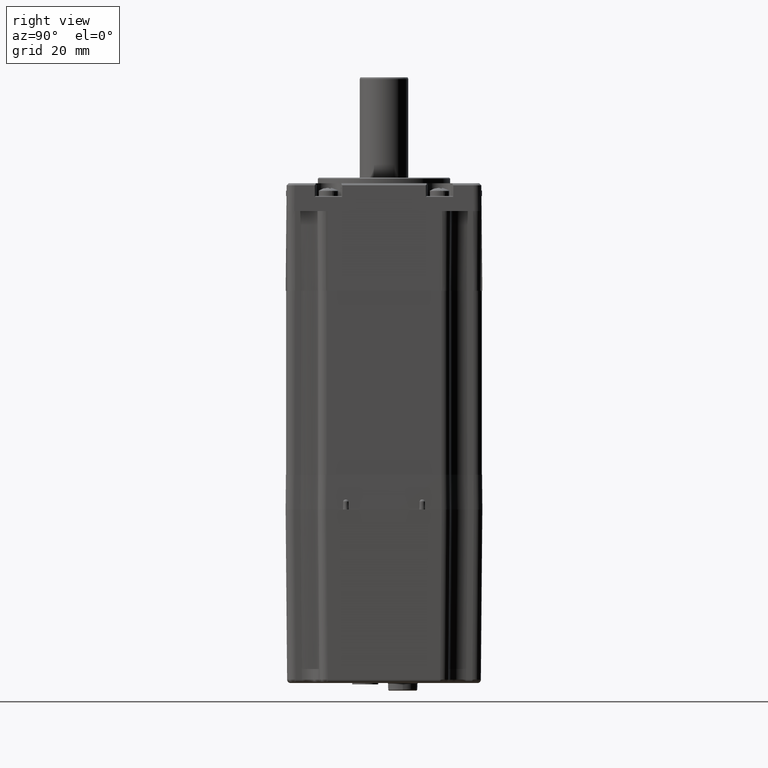
[diagram: clean part render]
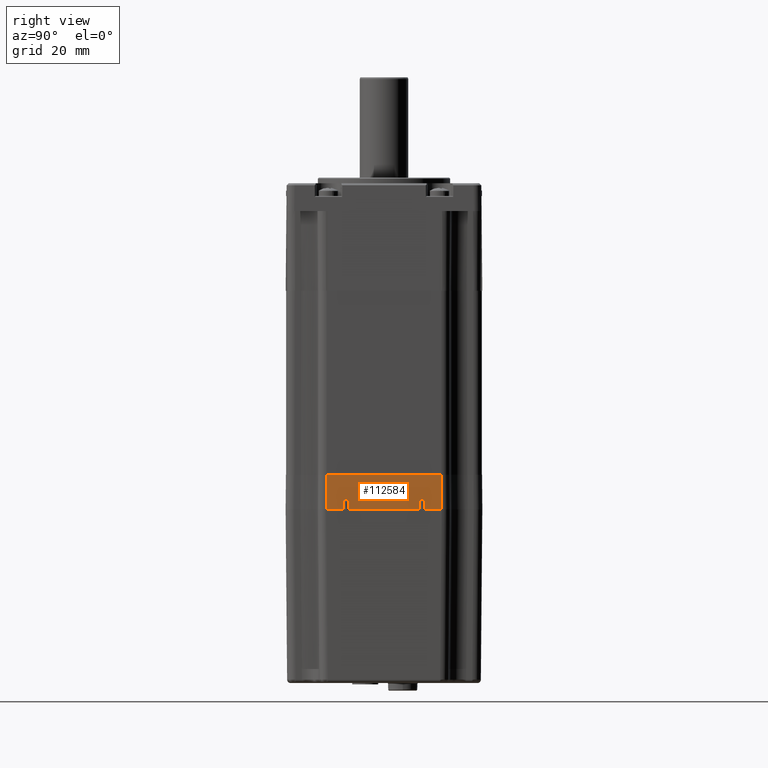
[diagram: same view with one face highlighted and labeled with its STEP entity id]
A machine part, right view. The second image highlights one B-rep face of the part: STEP entity #112584.
In plain terms, the highlighted planar face has unit normal (1, 0, 0.0087).
Its self-contained STEP definition (entity closure, byte-faithful):
#245 = CARTESIAN_POINT ( 'NONE',  ( 28.33726867790758064, 11.79999999999999716, -53.00000000000002132 ) ) ;
#718 = CARTESIAN_POINT ( 'NONE',  ( 28.33726867790759485, 7.806255641895631925E-15, -53.00000000000002132 ) ) ;
#973 = CARTESIAN_POINT ( 'NONE',  ( 28.31221389217270357, -11.18915255202020198, -50.12900592336112027 ) ) ;
#1057 = VECTOR ( 'NONE', #38924, 1000.000000000000000 ) ;
#1268 = CARTESIAN_POINT ( 'NONE',  ( 28.31221117411985233, -10.81229271371833711, -50.12869446535329132 ) ) ;
#2504 = CARTESIAN_POINT ( 'NONE',  ( 28.31416921438855994, -10.40136677369711116, -50.35306365664438744 ) ) ;
#2583 = LINE ( 'NONE', #97276, #59135 ) ;
#3123 = CARTESIAN_POINT ( 'NONE',  ( 28.31794772489302048, 10.23383058632317422, -50.78603807485019672 ) ) ;
#4241 = EDGE_CURVE ( 'NONE', #109124, #76185, #24948, .T. ) ;
#4432 = CARTESIAN_POINT ( 'NONE',  ( 28.32421031922440591, 11.77713893506511056, -51.50366030559093389 ) ) ;
#4476 = CARTESIAN_POINT ( 'NONE',  ( 28.31939389639366311, -11.76870275109384600, -50.95175291496205716 ) ) ;
#6049 = CARTESIAN_POINT ( 'NONE',  ( 28.31794772489302048, 10.23383058632317422, -50.78603807485019672 ) ) ;
#6090 = B_SPLINE_CURVE_WITH_KNOTS ( 'NONE', 3,
 ( #42061, #70867, #4432, #27023, #104090, #122168, #112226 ),
 .UNSPECIFIED., .F., .F.,
 ( 4, 3, 4 ),
 ( 0.0007861598841448719319, 0.001862759966439825159, 0.003000464563675161664 ),
 .UNSPECIFIED. ) ;
#8393 = CARTESIAN_POINT ( 'NONE',  ( 28.31312127675865042, 10.54637998764158091, -50.23298189821297655 ) ) ;
#8672 = LINE ( 'NONE', #122066, #32330 ) ;
#8817 = EDGE_CURVE ( 'NONE', #61163, #97099, #69186, .T. ) ;
#9195 = B_SPLINE_CURVE_WITH_KNOTS ( 'NONE', 3,
 ( #10357, #48001, #48631, #78041, #57404, #87444, #58632, #973, #39199, #88059 ),
 .UNSPECIFIED., .F., .F.,
 ( 4, 2, 2, 2, 4 ),
 ( -0.001122844141391254186, -0.0008421331060434347846, -0.0005614220706956153835, -0.0002807110353477959824, 2.341876692568689577E-17 ),
 .UNSPECIFIED. ) ;
#9450 = CARTESIAN_POINT ( 'NONE',  ( 28.32583421352255115, 10.22001631802882393, -51.68974016116764147 ) ) ;
#9884 = VECTOR ( 'NONE', #45144, 1000.000000000000000 ) ;
#10357 = CARTESIAN_POINT ( 'NONE',  ( 28.31794772489302048, -11.76616941367681868, -50.78603807485019672 ) ) ;
#10673 = CARTESIAN_POINT ( 'NONE',  ( 28.33726867790758064, 10.19999999999999396, -53.00000000000002132 ) ) ;
#10911 = VERTEX_POINT ( 'NONE', #91590 ) ;
#11887 = CARTESIAN_POINT ( 'NONE',  ( 28.31209217606547668, -10.90496481609995172, -50.11505863893471968 ) ) ;
#12535 = CARTESIAN_POINT ( 'NONE',  ( 28.31867081063867886, 10.23256388271578921, -50.86889549437263014 ) ) ;
#14000 = VERTEX_POINT ( 'NONE', #6049 ) ;
#14802 = DIRECTION ( 'NONE',  ( 0.9999619230641713097, 2.738932773193157493E-16, 0.008726535498373953759 ) ) ;
#15000 = CARTESIAN_POINT ( 'NONE',  ( 28.24874357347100329, 16.49883876581058573, -42.85602778005795699 ) ) ;
#15020 = B_SPLINE_CURVE_WITH_KNOTS ( 'NONE', 3,
 ( #50771, #11887, #1268, #97195, #88368, #2504, #78929, #108450, #117176, #40123 ),
 .UNSPECIFIED., .F., .F.,
 ( 4, 2, 2, 2, 4 ),
 ( 2.331034670843834533E-17, 0.0002809186991740778017, 0.0005618373983481322930, 0.0008427560975221867843, 0.001123674796696241384 ),
 .UNSPECIFIED. ) ;
#15145 = CARTESIAN_POINT ( 'NONE',  ( 28.33726867790759485, -10.20000000000000817, -53.00000000000002132 ) ) ;
#15686 = CARTESIAN_POINT ( 'NONE',  ( 28.33726867790759485, -11.79999999999999716, -53.00000000000002132 ) ) ;
#17378 = VERTEX_POINT ( 'NONE', #30276 ) ;
#18157 = EDGE_CURVE ( 'NONE', #105104, #20056, #15020, .T. ) ;
#18615 = VERTEX_POINT ( 'NONE', #45239 ) ;
#19667 = CARTESIAN_POINT ( 'NONE',  ( 28.31209217606547313, 10.99999999999999645, -50.11505863893472679 ) ) ;
#19737 = CARTESIAN_POINT ( 'NONE',  ( 28.24874357347101750, -16.49883876581059283, -42.85602778005795699 ) ) ;
#20056 = VERTEX_POINT ( 'NONE', #55897 ) ;
#20847 = CARTESIAN_POINT ( 'NONE',  ( 28.31867081063868241, -11.76743611728419303, -50.86889549437263014 ) ) ;
#22566 = EDGE_CURVE ( 'NONE', #40950, #10911, #24436, .T. ) ;
#22971 = CARTESIAN_POINT ( 'NONE',  ( 28.33726867790759485, -10.20000000000000817, -53.00000000000002132 ) ) ;
#23084 = B_SPLINE_CURVE_WITH_KNOTS ( 'NONE', 3,
 ( #49105, #85442, #66015, #46661, #29723, #8393, #105568, #87329, #113682, #19667 ),
 .UNSPECIFIED., .F., .F.,
 ( 4, 2, 2, 2, 4 ),
 ( -0.001122844141391263727, -0.0008421331060434416151, -0.0005614220706956195035, -0.0002807110353477973918, 2.471980953266950110E-17 ),
 .UNSPECIFIED. ) ;
#24436 = LINE ( 'NONE', #15000, #111695 ) ;
#24948 = B_SPLINE_CURVE_WITH_KNOTS ( 'NONE', 3,
 ( #32114, #70306, #97969, #90346, #4476, #20847, #59061 ),
 .UNSPECIFIED., .F., .F.,
 ( 4, 3, 4 ),
 ( 0.009828469557021225420, 0.01179416346792108543, 0.01204277423648244735 ),
 .UNSPECIFIED. ) ;
#27023 = CARTESIAN_POINT ( 'NONE',  ( 28.32734161664103922, 11.78262181403159659, -51.86247144971648737 ) ) ;
#29723 = CARTESIAN_POINT ( 'NONE',  ( 28.31416872473416291, 10.40164446717265179, -50.35300754780770660 ) ) ;
#29997 = CARTESIAN_POINT ( 'NONE',  ( 28.31711501769313699, 11.76471067490301259, -50.69061928086236435 ) ) ;
#30276 = CARTESIAN_POINT ( 'NONE',  ( 28.31794772489302048, 11.76616941367793068, -50.78603807485018251 ) ) ;
#32114 = CARTESIAN_POINT ( 'NONE',  ( 28.33726867790759485, -11.79999999999999716, -53.00000000000002132 ) ) ;
#32330 = VECTOR ( 'NONE', #84476, 1000.000000000000000 ) ;
#32657 = ORIENTED_EDGE ( 'NONE', *, *, #100938, .T. ) ;
#32672 = B_SPLINE_CURVE_WITH_KNOTS ( 'NONE', 3,
 ( #38750, #115198, #67534, #56936, #75701, #58160, #48787, #86992, #29997, #113970 ),
 .UNSPECIFIED., .F., .F.,
 ( 4, 2, 2, 2, 4 ),
 ( 2.466559942404522587E-17, 0.0002809186991740811627, 0.0005618373983481376056, 0.0008427560975221941569, 0.001123674796696250708 ),
 .UNSPECIFIED. ) ;
#34904 = ORIENTED_EDGE ( 'NONE', *, *, #37418, .F. ) ;
#35931 = CARTESIAN_POINT ( 'NONE',  ( 28.25000000000000711, -16.50009519233957178, -43.00000000000002132 ) ) ;
#36197 = ORIENTED_EDGE ( 'NONE', *, *, #8817, .T. ) ;
#36208 = ORIENTED_EDGE ( 'NONE', *, *, #73982, .T. ) ;
#36756 = CARTESIAN_POINT ( 'NONE',  ( 28.31794772489302048, -11.76616941367681868, -50.78603807485019672 ) ) ;
#37418 = EDGE_CURVE ( 'NONE', #18615, #94324, #59572, .T. ) ;
#38750 = CARTESIAN_POINT ( 'NONE',  ( 28.31209217606547313, 10.99999999999999645, -50.11505863893472679 ) ) ;
#38924 = DIRECTION ( 'NONE',  ( 2.739037067331802596E-16, -1.000000000000000000, -0.000000000000000000 ) ) ;
#39199 = CARTESIAN_POINT ( 'NONE',  ( 28.31209217606548023, -11.09496493094089509, -50.11505863893472679 ) ) ;
#39695 = VECTOR ( 'NONE', #97476, 1000.000000000000114 ) ;
#40123 = CARTESIAN_POINT ( 'NONE',  ( 28.31794772489302048, -10.23383058632207465, -50.78603807485018251 ) ) ;
#40950 = VERTEX_POINT ( 'NONE', #77004 ) ;
#42061 = CARTESIAN_POINT ( 'NONE',  ( 28.31794772489302048, 11.76616941367793068, -50.78603807485018251 ) ) ;
#42680 = LINE ( 'NONE', #43884, #9884 ) ;
#42993 = CARTESIAN_POINT ( 'NONE',  ( 28.33065063688434293, -10.21158411562706370, -52.24164761264640333 ) ) ;
#43583 = ORIENTED_EDGE ( 'NONE', *, *, #119819, .F. ) ;
#43884 = CARTESIAN_POINT ( 'NONE',  ( 28.24999999999999289, 7.806255641895631925E-15, -43.00000000000002132 ) ) ;
#44611 = EDGE_CURVE ( 'NONE', #14000, #71584, #23084, .T. ) ;
#45144 = DIRECTION ( 'NONE',  ( 2.739037067331802596E-16, -1.000000000000000000, -0.000000000000000000 ) ) ;
#45239 = CARTESIAN_POINT ( 'NONE',  ( 28.33726867790758064, 10.19999999999999396, -53.00000000000002132 ) ) ;
#46661 = CARTESIAN_POINT ( 'NONE',  ( 28.31482788513935134, 10.34116858661356275, -50.42853984885739038 ) ) ;
#48001 = CARTESIAN_POINT ( 'NONE',  ( 28.31711660851786405, -11.76471346171416599, -50.69080157132052733 ) ) ;
#48631 = CARTESIAN_POINT ( 'NONE',  ( 28.31630235146915808, -11.74182100364703807, -50.59749695525008661 ) ) ;
#48787 = CARTESIAN_POINT ( 'NONE',  ( 28.31481873299316376, 11.65819707125155169, -50.42749111677986207 ) ) ;
#49105 = CARTESIAN_POINT ( 'NONE',  ( 28.31794772489302048, 10.23383058632317422, -50.78603807485019672 ) ) ;
#50771 = CARTESIAN_POINT ( 'NONE',  ( 28.31209217606547668, -11.00000000000000355, -50.11505863893473389 ) ) ;
#52267 = ORIENTED_EDGE ( 'NONE', *, *, #18157, .T. ) ;
#52383 = CARTESIAN_POINT ( 'NONE',  ( 28.32107902197144256, -10.22834517144729638, -51.14484918021931037 ) ) ;
#53219 = DIRECTION ( 'NONE',  ( -0.008726203243944236423, -0.008726203243944170504, 0.9999238504775704861 ) ) ;
#54352 = CARTESIAN_POINT ( 'NONE',  ( 28.33726867790759485, -16.58736387024715953, -53.00000000000002132 ) ) ;
#55509 = B_SPLINE_CURVE_WITH_KNOTS ( 'NONE', 3,
 ( #89355, #52383, #118788, #108854, #42993, #81149, #22971 ),
 .UNSPECIFIED., .F., .F.,
 ( 4, 3, 4 ),
 ( 0.0007861598841448719319, 0.001862759966439825159, 0.003000464563675161664 ),
 .UNSPECIFIED. ) ;
#55897 = CARTESIAN_POINT ( 'NONE',  ( 28.31794772489302048, -10.23383058632207465, -50.78603807485018251 ) ) ;
#56936 = CARTESIAN_POINT ( 'NONE',  ( 28.31272156707735377, 11.36764219286415845, -50.18717970539032081 ) ) ;
#57404 = CARTESIAN_POINT ( 'NONE',  ( 28.31416872473417357, -11.59835553282734644, -50.35300754780771371 ) ) ;
#57526 = FACE_OUTER_BOUND ( 'NONE', #77280, .T. ) ;
#58160 = CARTESIAN_POINT ( 'NONE',  ( 28.31416921438855994, 11.59863322630288884, -50.35306365664438033 ) ) ;
#58632 = CARTESIAN_POINT ( 'NONE',  ( 28.31272599476984553, -11.36870924217899592, -50.18768706869542484 ) ) ;
#58883 = EDGE_CURVE ( 'NONE', #20056, #94324, #55509, .T. ) ;
#59061 = CARTESIAN_POINT ( 'NONE',  ( 28.31794772489302048, -11.76616941367681868, -50.78603807485019672 ) ) ;
#59135 = VECTOR ( 'NONE', #87206, 1000.000000000000000 ) ;
#59572 = LINE ( 'NONE', #718, #1057 ) ;
#61163 = VERTEX_POINT ( 'NONE', #35931 ) ;
#63411 = EDGE_CURVE ( 'NONE', #18615, #14000, #123688, .T. ) ;
#63586 = ORIENTED_EDGE ( 'NONE', *, *, #4241, .T. ) ;
#64406 = EDGE_CURVE ( 'NONE', #10911, #61163, #42680, .T. ) ;
#65456 = ORIENTED_EDGE ( 'NONE', *, *, #58883, .T. ) ;
#66015 = CARTESIAN_POINT ( 'NONE',  ( 28.31630235146915808, 10.25817899635295483, -50.59749695525007951 ) ) ;
#67296 = CARTESIAN_POINT ( 'NONE',  ( 28.31209217606547313, 10.99999999999999645, -50.11505863893472679 ) ) ;
#67534 = CARTESIAN_POINT ( 'NONE',  ( 28.31221117411984878, 11.18770728628166111, -50.12869446535329132 ) ) ;
#69186 = LINE ( 'NONE', #19737, #39695 ) ;
#70306 = CARTESIAN_POINT ( 'NONE',  ( 28.33155144546008941, -11.78999375459832422, -52.34487005136514881 ) ) ;
#70867 = CARTESIAN_POINT ( 'NONE',  ( 28.32107902197143900, 11.77165482855271783, -51.14484918021931037 ) ) ;
#71584 = VERTEX_POINT ( 'NONE', #67296 ) ;
#73982 = EDGE_CURVE ( 'NONE', #76185, #105104, #9195, .T. ) ;
#75701 = CARTESIAN_POINT ( 'NONE',  ( 28.31310976527518619, 11.45181713665276924, -50.23166281286191293 ) ) ;
#76185 = VERTEX_POINT ( 'NONE', #36756 ) ;
#77004 = CARTESIAN_POINT ( 'NONE',  ( 28.33726867790758064, 16.58736387024714887, -53.00000000000002132 ) ) ;
#77280 = EDGE_LOOP ( 'NONE', ( #119770, #63586, #36208, #52267, #65456, #34904, #110899, #95982, #32657, #121324, #43583, #85644, #110730, #36197 ) ) ;
#78041 = CARTESIAN_POINT ( 'NONE',  ( 28.31482788513935134, -11.65883141338642304, -50.42853984885739038 ) ) ;
#78929 = CARTESIAN_POINT ( 'NONE',  ( 28.31481873299316732, -10.34180292874845541, -50.42749111677986917 ) ) ;
#81149 = CARTESIAN_POINT ( 'NONE',  ( 28.33395965731045862, -10.20579141611213991, -52.62082379652404995 ) ) ;
#81400 = CARTESIAN_POINT ( 'NONE',  ( 28.31939389639364890, 10.23129724890614511, -50.95175291496205716 ) ) ;
#84476 = DIRECTION ( 'NONE',  ( 2.739037067331802596E-16, -1.000000000000000000, -0.000000000000000000 ) ) ;
#85442 = CARTESIAN_POINT ( 'NONE',  ( 28.31711660851786760, 10.23528653828582513, -50.69080157132053444 ) ) ;
#85644 = ORIENTED_EDGE ( 'NONE', *, *, #22566, .T. ) ;
#86992 = CARTESIAN_POINT ( 'NONE',  ( 28.31630002956495318, 11.74180861500403061, -50.59723089138248042 ) ) ;
#87156 = CARTESIAN_POINT ( 'NONE',  ( 28.32011698215778850, 10.23003068386588943, -51.03461033660259716 ) ) ;
#87206 = DIRECTION ( 'NONE',  ( -9.088379826625740621E-17, -1.000000000000000000, 0.000000000000000000 ) ) ;
#87329 = CARTESIAN_POINT ( 'NONE',  ( 28.31221389217270001, 10.81084744797979624, -50.12900592336111316 ) ) ;
#87444 = CARTESIAN_POINT ( 'NONE',  ( 28.31312127675865042, -11.45362001235841731, -50.23298189821299076 ) ) ;
#88059 = CARTESIAN_POINT ( 'NONE',  ( 28.31209217606547668, -11.00000000000000355, -50.11505863893473389 ) ) ;
#88368 = CARTESIAN_POINT ( 'NONE',  ( 28.31310976527519330, -10.54818286334723076, -50.23166281286191293 ) ) ;
#89355 = CARTESIAN_POINT ( 'NONE',  ( 28.31794772489302048, -10.23383058632207465, -50.78603807485018251 ) ) ;
#90346 = CARTESIAN_POINT ( 'NONE',  ( 28.32011698215780271, -11.76996931613410347, -51.03461033660259716 ) ) ;
#91272 = DIRECTION ( 'NONE',  ( 0.008726535498373953759, 0.000000000000000000, -0.9999619230641713097 ) ) ;
#91590 = CARTESIAN_POINT ( 'NONE',  ( 28.24999999999999289, 16.50009519233956112, -43.00000000000002132 ) ) ;
#94324 = VERTEX_POINT ( 'NONE', #15145 ) ;
#95789 = PLANE ( 'NONE',  #104319 ) ;
#95982 = ORIENTED_EDGE ( 'NONE', *, *, #44611, .T. ) ;
#97099 = VERTEX_POINT ( 'NONE', #54352 ) ;
#97195 = CARTESIAN_POINT ( 'NONE',  ( 28.31272156707736798, -10.63235780713583445, -50.18717970539030659 ) ) ;
#97223 = CARTESIAN_POINT ( 'NONE',  ( 28.33155144546007520, 10.21000624540166868, -52.34487005136514881 ) ) ;
#97276 = CARTESIAN_POINT ( 'NONE',  ( 28.33726867790758064, 19.08726867790758774, -53.00000000004469314 ) ) ;
#97476 = DIRECTION ( 'NONE',  ( 0.008726203243944239893, -0.008726203243944278057, -0.9999238504775704861 ) ) ;
#97549 = VERTEX_POINT ( 'NONE', #245 ) ;
#97969 = CARTESIAN_POINT ( 'NONE',  ( 28.32583421352256536, -11.77998368197116719, -51.68974016116764147 ) ) ;
#100751 = CARTESIAN_POINT ( 'NONE',  ( 28.24999999999999289, 7.806255641895631925E-15, -43.00000000000002132 ) ) ;
#100938 = EDGE_CURVE ( 'NONE', #71584, #17378, #32672, .T. ) ;
#104090 = CARTESIAN_POINT ( 'NONE',  ( 28.33065063688433582, 11.78841588437294163, -52.24164761264640333 ) ) ;
#104319 = AXIS2_PLACEMENT_3D ( 'NONE', #100751, #14802, #91272 ) ;
#105034 = CARTESIAN_POINT ( 'NONE',  ( 28.31209217606547668, -11.00000000000000355, -50.11505863893473389 ) ) ;
#105104 = VERTEX_POINT ( 'NONE', #105034 ) ;
#105568 = CARTESIAN_POINT ( 'NONE',  ( 28.31272599476983842, 10.63129075782100053, -50.18768706869541774 ) ) ;
#108450 = CARTESIAN_POINT ( 'NONE',  ( 28.31630002956496384, -10.25819138499597472, -50.59723089138246621 ) ) ;
#108854 = CARTESIAN_POINT ( 'NONE',  ( 28.32734161664104633, -10.21737818596840874, -51.86247144971648737 ) ) ;
#109124 = VERTEX_POINT ( 'NONE', #15686 ) ;
#110730 = ORIENTED_EDGE ( 'NONE', *, *, #64406, .T. ) ;
#110899 = ORIENTED_EDGE ( 'NONE', *, *, #63411, .T. ) ;
#111211 = EDGE_CURVE ( 'NONE', #17378, #97549, #6090, .T. ) ;
#111695 = VECTOR ( 'NONE', #53219, 1000.000000000000114 ) ;
#112226 = CARTESIAN_POINT ( 'NONE',  ( 28.33726867790758064, 11.79999999999999716, -53.00000000000002132 ) ) ;
#112584 = ADVANCED_FACE ( 'NONE', ( #57526 ), #95789, .T. ) ;
#113682 = CARTESIAN_POINT ( 'NONE',  ( 28.31209217606547668, 10.90503506905910136, -50.11505863893473389 ) ) ;
#113970 = CARTESIAN_POINT ( 'NONE',  ( 28.31794772489302048, 11.76616941367793068, -50.78603807485018251 ) ) ;
#114113 = EDGE_CURVE ( 'NONE', #109124, #97099, #8672, .T. ) ;
#115198 = CARTESIAN_POINT ( 'NONE',  ( 28.31209217606548023, 11.09503518390005006, -50.11505863893470547 ) ) ;
#117176 = CARTESIAN_POINT ( 'NONE',  ( 28.31711501769313699, -10.23528932509699452, -50.69061928086236435 ) ) ;
#118788 = CARTESIAN_POINT ( 'NONE',  ( 28.32421031922441301, -10.22286106493489655, -51.50366030559093389 ) ) ;
#119770 = ORIENTED_EDGE ( 'NONE', *, *, #114113, .F. ) ;
#119819 = EDGE_CURVE ( 'NONE', #40950, #97549, #2583, .T. ) ;
#121324 = ORIENTED_EDGE ( 'NONE', *, *, #111211, .T. ) ;
#122066 = CARTESIAN_POINT ( 'NONE',  ( 28.33726867790759485, 7.806255641895631925E-15, -53.00000000000002132 ) ) ;
#122168 = CARTESIAN_POINT ( 'NONE',  ( 28.33395965731044441, 11.79420858388786542, -52.62082379652404995 ) ) ;
#123688 = B_SPLINE_CURVE_WITH_KNOTS ( 'NONE', 3,
 ( #10673, #97223, #9450, #87156, #81400, #12535, #3123 ),
 .UNSPECIFIED., .F., .F.,
 ( 4, 3, 4 ),
 ( 0.009828469557021225420, 0.01179416346792108543, 0.01204277423648244735 ),
 .UNSPECIFIED. ) ;